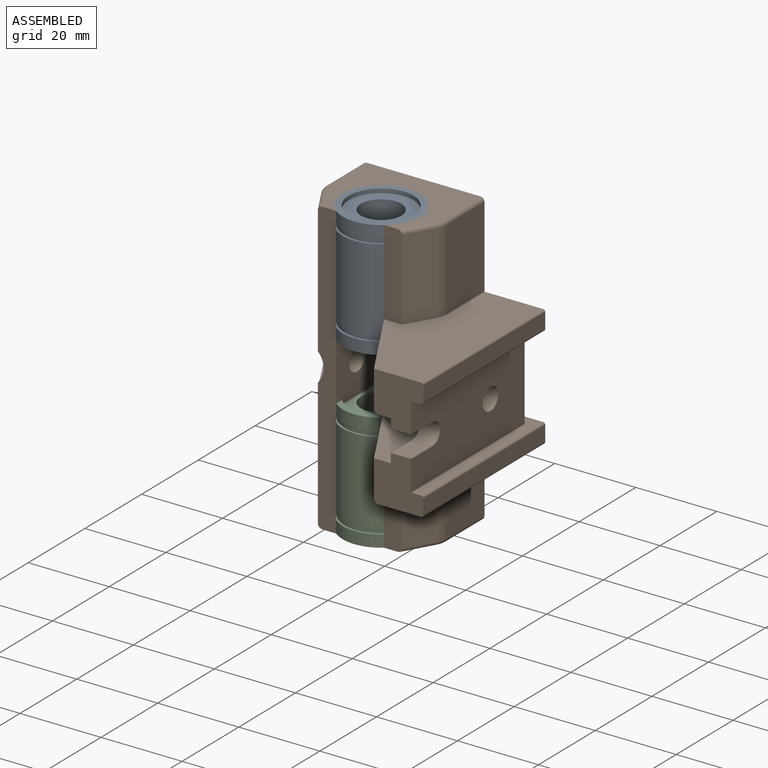
[diagram: assembled view]
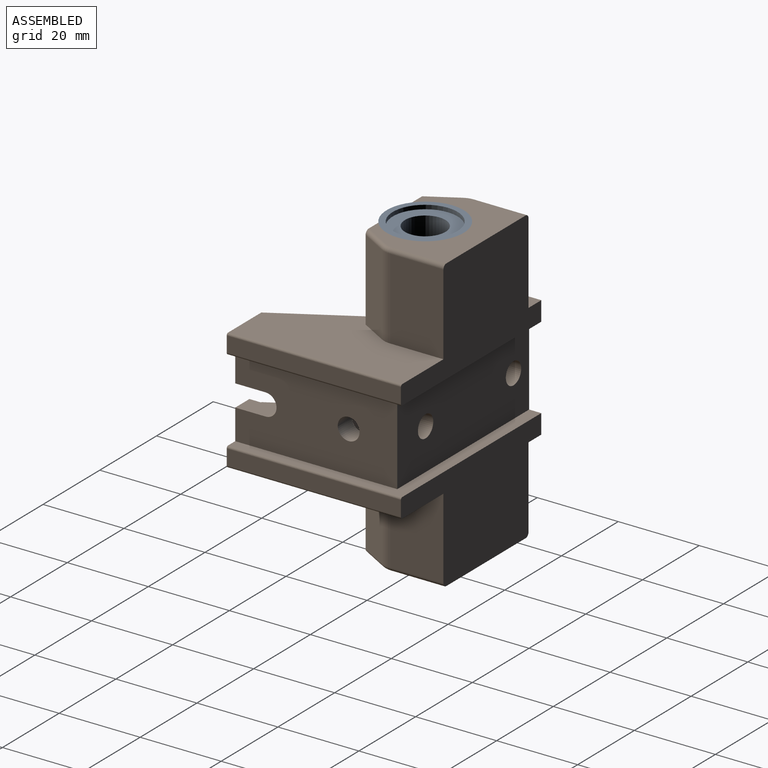
[diagram: assembled view, second angle]
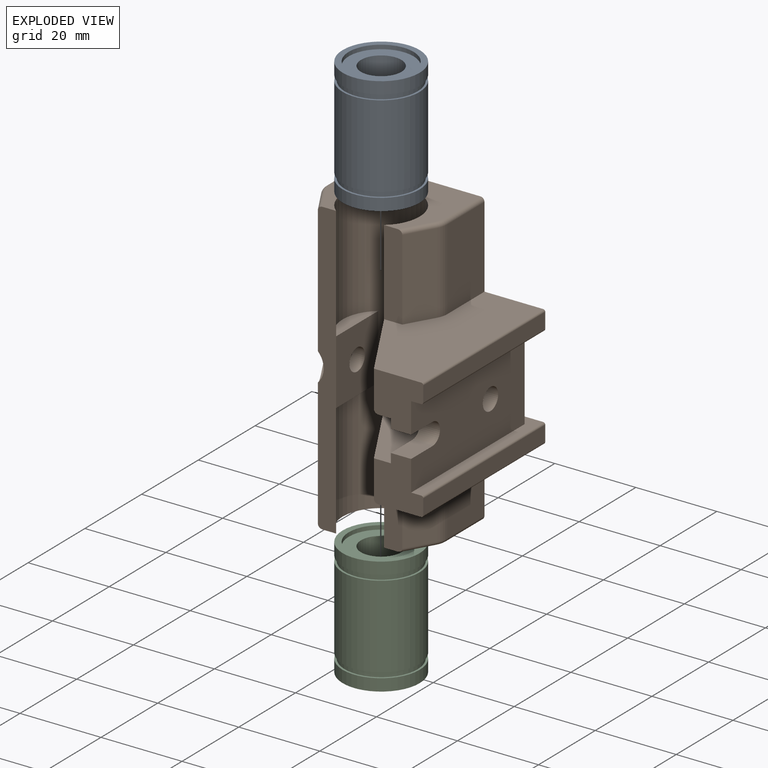
[diagram: exploded view]
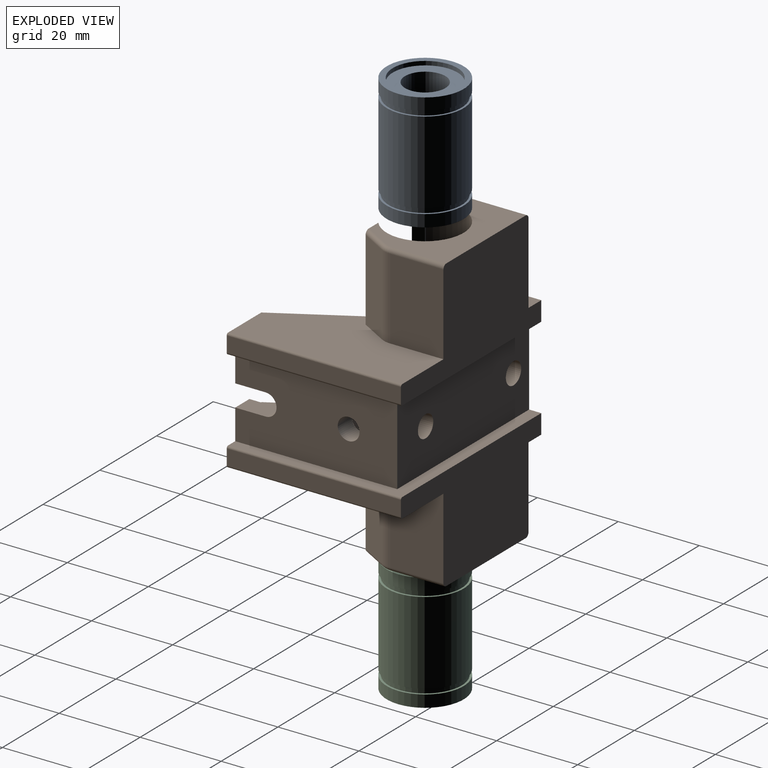
[diagram: exploded view, second angle]
ASSEMBLY  parts=3 mates=2
PART A: 16 faces, bbox 19x19x29 mm
  f0: plane 19x19mm, normal (0,0,1), area 82.5mm2, adj f1,f15
  f1: cylinder r=8mm len=16mm, axis (0,0,1), area 50.3mm2, adj f0,f2
  f2: plane 16x16mm, normal (0,0,1), area 122.5mm2, adj f1,f3
  f3: cylinder r=5mm len=27mm, axis (0,0,1), area 848.2mm2, adj f2,f4
  f4: plane 16x16mm, normal (0,0,-1), area 122.5mm2, adj f3,f5
  f5: cylinder r=8mm len=16mm, axis (0,0,1), area 50.3mm2, adj f4,f6
  f6: plane 19x19mm, normal (0,0,-1), area 82.5mm2, adj f5,f7
  f7: cylinder r=9.5mm len=19mm, axis (0,0,1), area 177.6mm2, adj f6,f8
  f8: plane 19x19mm, normal (0,0,1), area 29.1mm2, adj f7,f9
  f9: cylinder r=9mm len=18mm, axis (0,0,1), area 73.5mm2, adj f8,f10
  f10: plane 19x19mm, normal (0,0,-1), area 29.1mm2, adj f9,f11
  f11: cylinder r=9.5mm len=20.45mm, axis (0,0,1), area 1220.7mm2, adj f10,f12
  f12: plane 19x19mm, normal (0,0,1), area 29.1mm2, adj f11,f13
  f13: cylinder r=9mm len=18mm, axis (0,0,1), area 73.5mm2, adj f12,f14
  f14: plane 19x19mm, normal (0,0,-1), area 29.1mm2, adj f13,f15
  f15: cylinder r=9.5mm len=19mm, axis (0,0,1), area 177.6mm2, adj f0,f14
PART B: 71 faces, bbox 49.5x43.5x72 mm
  f0: plane 72x4.5mm, normal (0,-1,0), area 316.7mm2, adj f3,f12,f18,f19,f34,f42,f61,f64
  f1: plane 12.3x12.2mm, normal (0,-1,0), area 117.5mm2, adj f2,f23,f24,f25,f29,f30,f33,f38
  f2: plane 36x10mm, normal (1,0,0), area 285.1mm2, adj f1,f6,f27,f28,f29,f38,f39,f40
  f3: cylinder r=9.5mm len=72mm, axis (0,0,-1), area 2923.3mm2, adj f0,f7,f10,f17,f18,f19,f24,f27
  f4: plane 49.5x25.8mm, normal (0,1,0), area 867.1mm2, adj f5,f8,f11,f19,f20,f22,f26,f32
  f5: plane 43x3.8mm, normal (-1,0,0), area 163.4mm2, adj f4,f6,f68,f69
  f6: plane 12.3x12.2mm, normal (0,-1,0), area 117.5mm2, adj f2,f5,f7,f26,f28,f30,f32,f39
  f7: plane 20.57x11.88mm, normal (0.87,-0.5,0), area 213.8mm2, adj f3,f6,f26,f65
  f8: plane 20x13.16mm, normal (-1,0,0), area 263.2mm2, adj f4,f26,f48,f56
  f9: plane 20x6.77mm, normal (-0.87,-0.5,0), area 156.3mm2, adj f10,f26,f48,f58
  f10: plane 21x4.5mm, normal (0,-1,0), area 94.3mm2, adj f3,f9,f19,f26,f58
  f11: plane 20x13.16mm, normal (1,0,0), area 263.2mm2, adj f4,f22,f49,f59
  f12: plane 70x14.56mm, normal (0.87,-0.5,0), area 657.4mm2, adj f0,f21,f22,f42,f43,f44,f45,f49
  f13: plane 20x13.16mm, normal (1,0,0), area 263.2mm2, adj f14,f21,f51,f62
  f14: plane 49.5x25.8mm, normal (0,1,0), area 867.1mm2, adj f13,f15,f18,f20,f21,f23,f25,f33
  f15: plane 20x13.16mm, normal (-1,0,0), area 263.2mm2, adj f14,f25,f52,f53
  f16: plane 20x6.77mm, normal (-0.87,-0.5,0), area 156.3mm2, adj f17,f25,f52,f55
  f17: plane 22x4.5mm, normal (0,-1,0), area 94.5mm2, adj f3,f16,f18,f25,f55,f66
  f18: plane 28x22.43mm, normal (0,0,1), area 322.2mm2, adj f0,f3,f14,f17,f53,f54,f55,f62
  f19: plane 28x22.43mm, normal (0,0,-1), area 322.2mm2, adj f0,f3,f4,f10,f56,f57,f58,f59
  f20: plane 30x5.37mm, normal (1,0,0), area 99.8mm2, adj f4,f14,f21,f22,f31,f32,f33,f50
  f21: plane 15.66x5.17mm, normal (0,0,1), area 47.7mm2, adj f12,f13,f14,f20,f50,f51
  f22: plane 15.66x5.17mm, normal (0,0,-1), area 47.7mm2, adj f4,f11,f12,f20,f49,f50
  f23: plane 43x3.8mm, normal (-1,0,0), area 163.4mm2, adj f1,f14,f67,f70
  f24: plane 20.57x11.88mm, normal (0.87,-0.5,0), area 213.8mm2, adj f1,f3,f29,f66
  f25: plane 43x22.42mm, normal (0,0,1), area 682.6mm2, adj f1,f14,f15,f16,f17,f52,f66,f70
  f26: plane 43x23.58mm, normal (0,0,-1), area 706.4mm2, adj f4,f6,f7,f8,f9,f10,f48,f69
  f27: plane 16.88x10mm, normal (0,-1,0), area 145.9mm2, adj f2,f3,f28,f29,f47
  f28: plane 36x16.88mm, normal (0,0,1), area 395.7mm2, adj f2,f3,f6,f27,f65
  f29: plane 36x16.88mm, normal (0,0,-1), area 419.8mm2, adj f1,f2,f3,f24,f27
  f30: plane 40x20.4mm, normal (-1,0,0), area 741.1mm2, adj f1,f6,f31,f32,f33,f38,f39,f40
  f31: plane 46.5x20.4mm, normal (0,1,0), area 902.8mm2, adj f20,f30,f32,f33,f46,f47
  f32: plane 49x43mm, normal (0,0,1), area 247mm2, adj f4,f6,f20,f30,f31,f68
  f33: plane 49x43mm, normal (0,0,-1), area 247mm2, adj f1,f14,f20,f30,f31,f67
  f34: plane 16x14.86mm, normal (-1,0,0), area 214.8mm2, adj f0,f3,f35,f36,f37
  f35: plane 14.86x3.58mm, normal (0,0,1), area 37mm2, adj f3,f34
  f36: plane 14.86x3.58mm, normal (0,0,-1), area 37mm2, adj f3,f34
  f37: cylinder r=2.7mm len=5.4mm, axis (-1,0,0), area 58.8mm2, adj f34,f42
  f38: plane 7.5x5mm, normal (0,0,-1), area 37.5mm2, adj f1,f2,f30,f40
  f39: plane 7.5x5mm, normal (0,0,1), area 37.5mm2, adj f2,f6,f30,f40
  f40: cylinder r=2.7mm len=5.4mm, axis (-1,0,0), area 42.4mm2, adj f2,f30,f38,f39
  f41: cylinder r=2.7mm len=5.4mm, axis (-1,0,0), area 84.8mm2, adj f2,f30
  f42: cylinder r=5mm len=14.4mm, axis (0,-1,0), area 179.1mm2, adj f0,f12,f37,f43,f44,f45
  f43: plane 8.2x4.74mm, normal (0,0,-1), area 19.4mm2, adj f12,f42,f45
  f44: plane 8.2x4.74mm, normal (0,0,1), area 19.4mm2, adj f12,f42,f45
  f45: plane 10x9.74mm, normal (0,-1,0), area 63.7mm2, adj f12,f42,f43,f44,f46
  f46: cylinder r=2.7mm len=5.4mm, axis (0,-1,0), area 85.3mm2, adj f31,f45
  f47: cylinder r=2.7mm len=5.4mm, axis (0,-1,0), area 67.9mm2, adj f27,f31
  f48: cylinder r=5mm len=20mm, axis (0,0,-1), area 52.4mm2, adj f8,f9,f26,f57
  f49: cylinder r=5mm len=20mm, axis (0,0,-1), area 52.4mm2, adj f11,f12,f22,f60
  f50: cylinder r=5mm len=30mm, axis (0,0,-1), area 78.5mm2, adj f12,f20,f21,f22
  f51: cylinder r=5mm len=20mm, axis (0,0,-1), area 52.4mm2, adj f12,f13,f21,f63
  f52: cylinder r=5mm len=20mm, axis (0,0,-1), area 52.4mm2, adj f15,f16,f25,f54
  f53: cylinder r=1mm len=13.16mm, axis (0,1,0), area 20.7mm2, adj f14,f15,f18,f54
  f54: torus R=4mm, axis (0,0,1), area 3.8mm2, adj f18,f52,f53,f55
  f55: cylinder r=1mm len=7.77mm, axis (-0.5,0.87,0), area 12.6mm2, adj f16,f17,f18,f54
  f56: cylinder r=1mm len=13.16mm, axis (0,-1,0), area 20.7mm2, adj f4,f8,f19,f57
  f57: torus R=4mm, axis (0,0,1), area 3.8mm2, adj f19,f48,f56,f58
  f58: cylinder r=1mm len=7.77mm, axis (0.5,-0.87,0), area 12.6mm2, adj f9,f10,f19,f57
  f59: cylinder r=1mm len=13.16mm, axis (0,1,0), area 20.7mm2, adj f4,f11,f19,f60
  f60: torus R=4mm, axis (0,0,1), area 3.8mm2, adj f19,f49,f59,f61
  f61: cylinder r=1mm len=7.77mm, axis (0.5,0.87,0), area 12.6mm2, adj f0,f12,f19,f60
  f62: cylinder r=1mm len=13.16mm, axis (0,-1,0), area 20.7mm2, adj f13,f14,f18,f63
  f63: torus R=4mm, axis (0,0,1), area 3.8mm2, adj f18,f51,f62,f64
  f64: cylinder r=1mm len=7.77mm, axis (-0.5,-0.87,0), area 12.6mm2, adj f0,f12,f18,f63
  f65: cylinder r=1mm len=21.75mm, axis (-0.5,-0.87,0), area 37.7mm2, adj f3,f6,f7,f28
  f66: cylinder r=1mm len=21.57mm, axis (-0.5,-0.87,0), area 37.3mm2, adj f1,f17,f24,f25
  f67: cylinder r=0.5mm len=43mm, axis (0,-1,0), area 33.8mm2, adj f1,f14,f23,f33
  f68: cylinder r=0.5mm len=43mm, axis (0,1,0), area 33.8mm2, adj f4,f5,f6,f32
  f69: cylinder r=0.5mm len=43mm, axis (0,-1,0), area 33.8mm2, adj f4,f5,f6,f26
  f70: cylinder r=0.5mm len=43mm, axis (0,1,0), area 33.8mm2, adj f1,f14,f23,f25
PART C: same geometry as A
PLACE A rot(axis=(0,1,0),180deg) t=(-69.73,95.56,-71.46)mm
PLACE B rot(axis=(0,-1,0),180deg) t=(-26.87,147.4,-92.96)mm
PLACE C rot(axis=(0,1,0),180deg) t=(-69.73,95.56,-114.46)mm
MATE fastened A.f1 <-> B.f3  axis (0,0,1) through (-69.73,95.56,-56.96)mm
MATE fastened C.f1 <-> B.f3  axis (0,0,-1) through (-69.73,95.56,-128.96)mm
